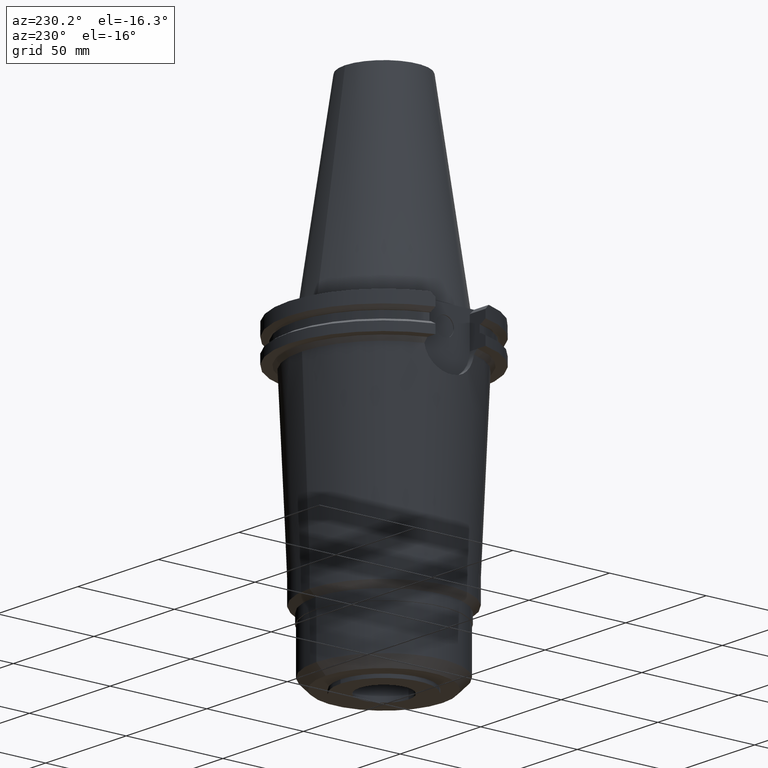
[diagram: clean part render]
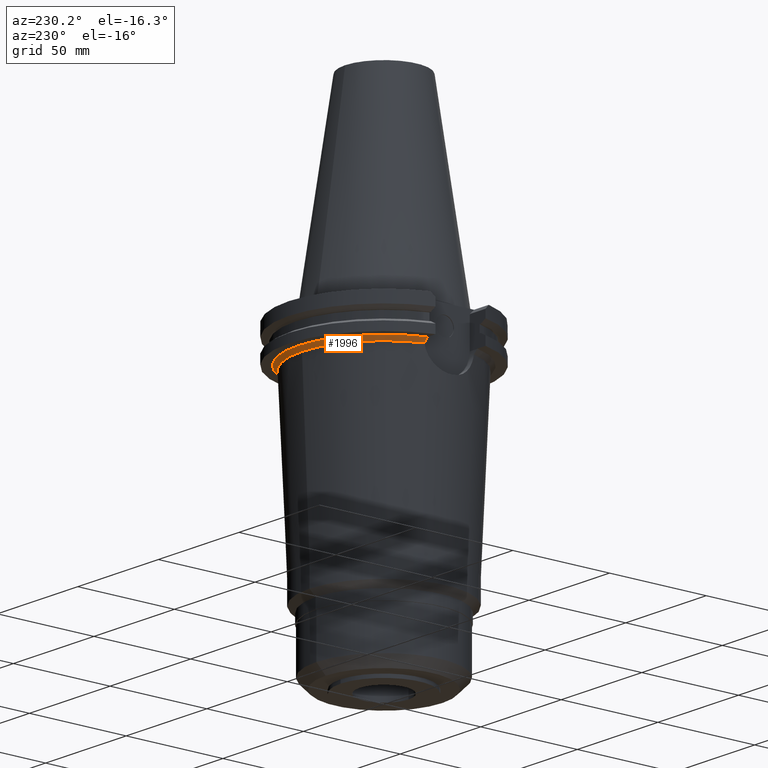
[diagram: same view with one face highlighted and labeled with its STEP entity id]
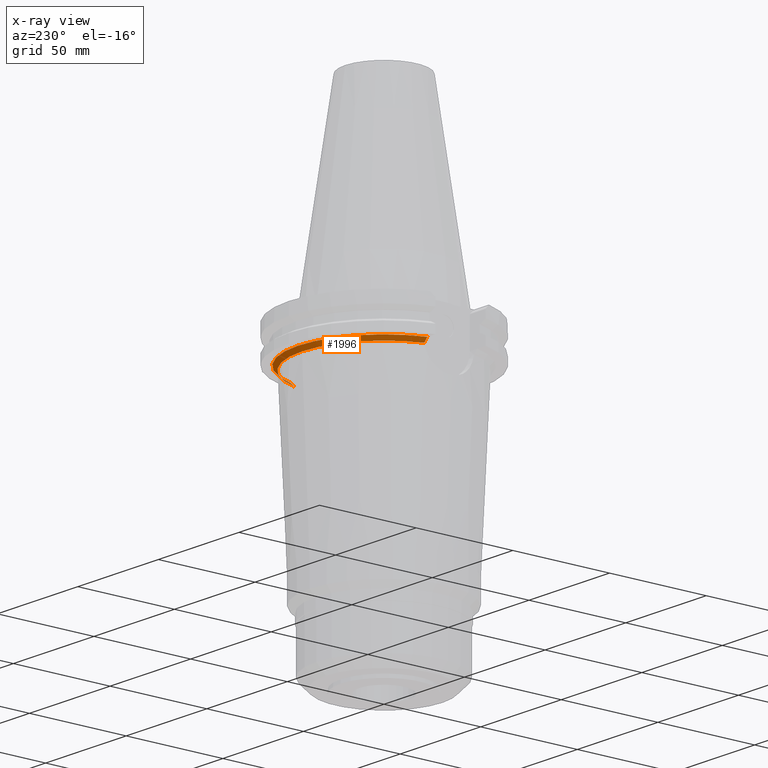
[diagram: x-ray of the same camera — body ghosted, the highlighted face saturated]
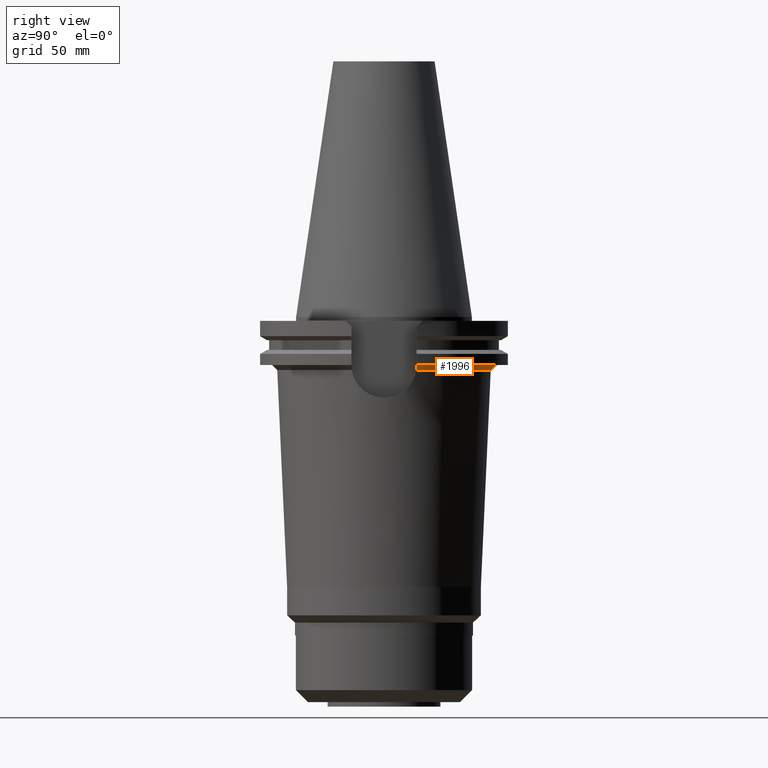
[diagram: same view with one face highlighted and labeled with its STEP entity id]
A machine part, auxiliary view. The second image highlights one B-rep face of the part: STEP entity #1996.
The next image is the same camera in x-ray: the body ghosted, the highlighted face saturated — about 1% of this face is hidden behind the body in this view.
A second angle (right view) of the same face is appended — the face is thin or edge-on in the first view.
In plain terms, the highlighted conical surface has half-angle 45 deg.
Its self-contained STEP definition (entity closure, byte-faithful):
#258=CARTESIAN_POINT('',(4.247738662059E1,1.2955E1,-1.905E1));
#259=CARTESIAN_POINT('',(4.244427821283E1,1.2955E1,-1.908166831584E1));
#260=CARTESIAN_POINT('',(4.241118676471E1,1.295497471917E1,-1.911333885491E1));
#261=CARTESIAN_POINT('',(4.237807520706E1,1.295497471917E1,-1.914500387728E1));
#273=CARTESIAN_POINT('',(4.042673454866E1,1.281419217876E1,-2.104997200060E1));
#274=CARTESIAN_POINT('',(4.064294828953E1,1.284627243460E1,-2.083417124549E1));
#275=CARTESIAN_POINT('',(4.107632669431E1,1.289888435426E1,-2.040519865093E1));
#276=CARTESIAN_POINT('',(4.172728764717E1,1.294507183545E1,-1.976984261249E1));
#277=CARTESIAN_POINT('',(4.216130141831E1,1.295497471917E1,-1.935230753062E1));
#278=CARTESIAN_POINT('',(4.237807520706E1,1.295497471917E1,-1.914500387728E1));
#283=CARTESIAN_POINT('',(-4.237808418538E1,1.295498697628E1,-1.914500199689E1));
#284=CARTESIAN_POINT('',(-4.216130147356E1,1.295498697628E1,-1.935231413095E1));
#285=CARTESIAN_POINT('',(-4.172729111163E1,1.294506741279E1,-1.976984506353E1));
#286=CARTESIAN_POINT('',(-4.107633230774E1,1.289887989110E1,-2.040521233381E1));
#287=CARTESIAN_POINT('',(-4.064295710422E1,1.284628197123E1,-2.083417678579E1));
#288=CARTESIAN_POINT('',(-4.042673203742E1,1.281419911422E1,-2.104998909897E1));
#293=CARTESIAN_POINT('',(0.E0,0.E0,-2.105E1));
#294=DIRECTION('',(0.E0,0.E0,-1.E0));
#295=DIRECTION('',(-9.532576604773E-1,3.021586218220E-1,0.E0));
#296=AXIS2_PLACEMENT_3D('',#293,#294,#295);
#343=CARTESIAN_POINT('',(0.E0,0.E0,-2.105E1));
#344=DIRECTION('',(0.E0,0.E0,1.E0));
#345=DIRECTION('',(9.532582356513E-1,3.021568072423E-1,0.E0));
#346=AXIS2_PLACEMENT_3D('',#343,#344,#345);
#374=CARTESIAN_POINT('',(-4.042673203742E1,1.281419911422E1,-2.104998909897E1));
#451=CARTESIAN_POINT('',(-4.237808418538E1,1.295498697628E1,-1.914500199689E1));
#452=CARTESIAN_POINT('',(-4.241119574704E1,1.295498697628E1,-1.911333697871E1));
#453=CARTESIAN_POINT('',(-4.244427821283E1,1.2955E1,-1.908166831584E1));
#454=CARTESIAN_POINT('',(-4.247738662059E1,1.2955E1,-1.905E1));
#482=CARTESIAN_POINT('',(0.E0,0.E0,-1.905E1));
#483=DIRECTION('',(0.E0,0.E0,-1.E0));
#484=DIRECTION('',(-9.565037397673E-1,2.917200641218E-1,0.E0));
#485=AXIS2_PLACEMENT_3D('',#482,#483,#484);
#490=CARTESIAN_POINT('',(0.E0,0.E0,-1.905E1));
#491=DIRECTION('',(0.E0,0.E0,-1.E0));
#492=DIRECTION('',(0.E0,1.E0,0.E0));
#493=AXIS2_PLACEMENT_3D('',#490,#491,#492);
#1624=VERTEX_POINT('',#374);
#1628=CARTESIAN_POINT('',(0.E0,4.240901258883E1,-2.105E1));
#1629=VERTEX_POINT('',#1628);
#1630=VERTEX_POINT('',#283);
#1643=VERTEX_POINT('',#273);
#1644=VERTEX_POINT('',#278);
#1645=VERTEX_POINT('',#258);
#1646=CARTESIAN_POINT('',(-4.976888407666E-14,4.440901258883E1,-1.905E1));
#1647=VERTEX_POINT('',#1646);
#1648=CARTESIAN_POINT('',(-4.247738662059E1,1.2955E1,-1.905E1));
#1649=VERTEX_POINT('',#1648);
#1974=CARTESIAN_POINT('',(0.E0,0.E0,-2.005E1));
#1975=DIRECTION('',(0.E0,0.E0,1.E0));
#1976=DIRECTION('',(0.E0,1.E0,0.E0));
#1977=AXIS2_PLACEMENT_3D('',#1974,#1975,#1976);
#1978=CONICAL_SURFACE('',#1977,4.340901258883E1,4.5E1);
#1980=ORIENTED_EDGE('',*,*,#1979,.T.);
#1981=ORIENTED_EDGE('',*,*,#1950,.F.);
#1983=ORIENTED_EDGE('',*,*,#1982,.F.);
#1985=ORIENTED_EDGE('',*,*,#1984,.F.);
#1987=ORIENTED_EDGE('',*,*,#1986,.F.);
#1989=ORIENTED_EDGE('',*,*,#1988,.T.);
#1991=ORIENTED_EDGE('',*,*,#1990,.T.);
#1993=ORIENTED_EDGE('',*,*,#1992,.F.);
#1994=EDGE_LOOP('',(#1980,#1981,#1983,#1985,#1987,#1989,#1991,#1993));
#1995=FACE_OUTER_BOUND('',#1994,.F.);
#262=B_SPLINE_CURVE_WITH_KNOTS('',3,(#258,#259,#260,#261),.UNSPECIFIED.,.F.,.F.,
(4,4),(0.E0,1.E0),.UNSPECIFIED.);
#279=B_SPLINE_CURVE_WITH_KNOTS('',3,(#273,#274,#275,#276,#277,#278),
.UNSPECIFIED.,.F.,.F.,(4,1,1,4),(0.E0,3.333333333333E-1,6.666666666667E-1,1.E0),
.UNSPECIFIED.);
#289=B_SPLINE_CURVE_WITH_KNOTS('',3,(#283,#284,#285,#286,#287,#288),
.UNSPECIFIED.,.F.,.F.,(4,1,1,4),(0.E0,3.333333333333E-1,6.666666666667E-1,1.E0),
.UNSPECIFIED.);
#297=CIRCLE('',#296,4.240901258883E1);
#347=CIRCLE('',#346,4.240901258884E1);
#455=B_SPLINE_CURVE_WITH_KNOTS('',3,(#451,#452,#453,#454),.UNSPECIFIED.,.F.,.F.,
(4,4),(0.E0,1.E0),.UNSPECIFIED.);
#486=CIRCLE('',#485,4.440901258883E1);
#494=CIRCLE('',#493,4.440901258883E1);
#1950=EDGE_CURVE('',#1645,#1644,#262,.T.);
#1979=EDGE_CURVE('',#1643,#1644,#279,.T.);
#1982=EDGE_CURVE('',#1647,#1645,#494,.T.);
#1984=EDGE_CURVE('',#1649,#1647,#486,.T.);
#1986=EDGE_CURVE('',#1630,#1649,#455,.T.);
#1988=EDGE_CURVE('',#1630,#1624,#289,.T.);
#1990=EDGE_CURVE('',#1624,#1629,#297,.T.);
#1992=EDGE_CURVE('',#1643,#1629,#347,.T.);
#1996=ADVANCED_FACE('',(#1995),#1978,.T.);